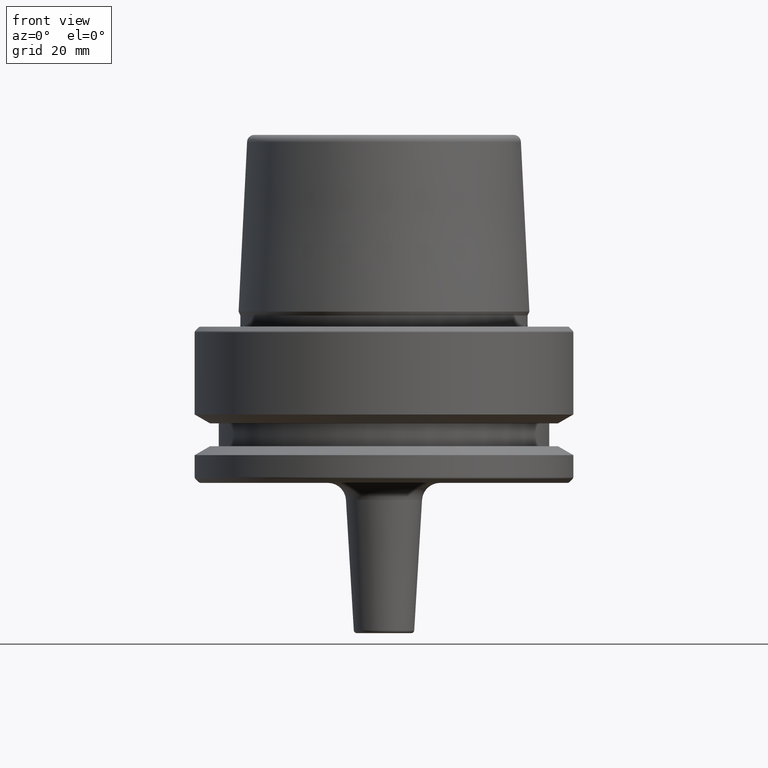
[diagram: clean part render]
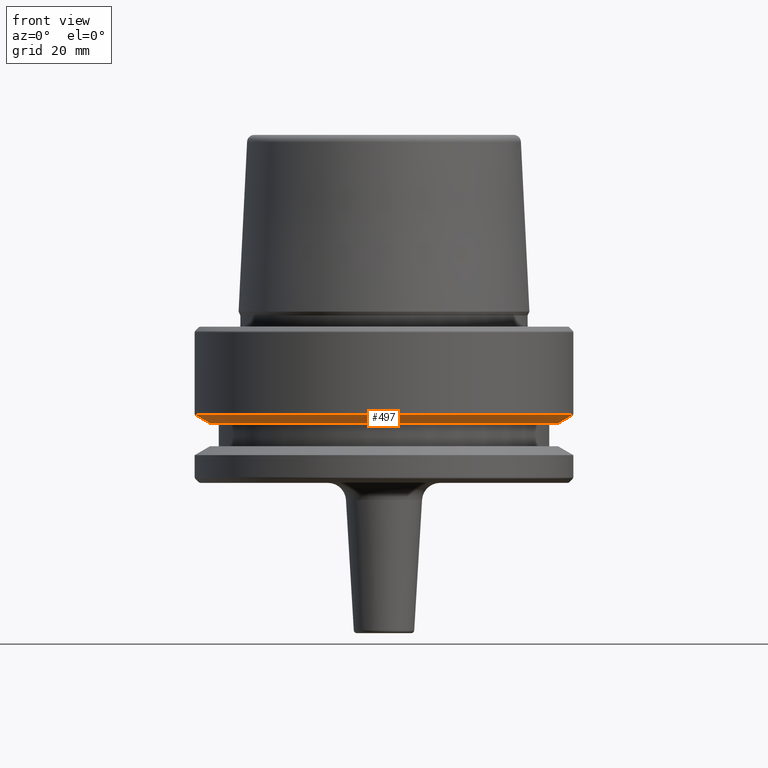
[diagram: same view with one face highlighted and labeled with its STEP entity id]
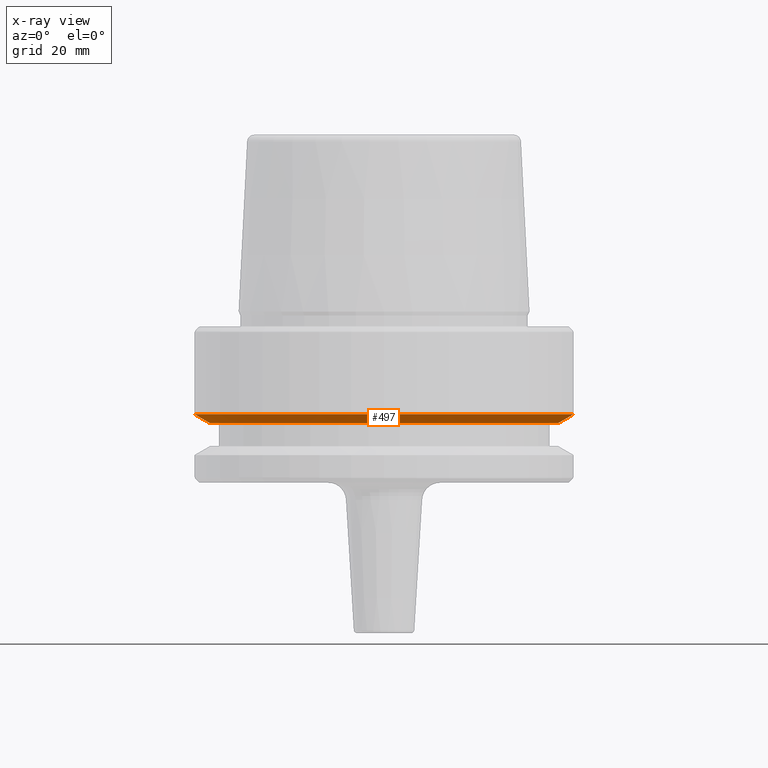
[diagram: x-ray of the same camera — body ghosted, the highlighted face saturated]
A machine part, front view. The second image highlights one B-rep face of the part: STEP entity #497.
The next image is the same camera in x-ray: the body ghosted, the highlighted face saturated — about 0% of this face is hidden behind the body in this view.
In plain terms, the highlighted conical surface has half-angle 60 deg.
Its self-contained STEP definition (entity closure, byte-faithful):
#32 = CARTESIAN_POINT ( 'NONE',  ( 0.0000000000000000000, 0.0000000000000000000, -16.10000000000001600 ) ) ;
#75 = LINE ( 'NONE', #247, #1051 ) ;
#144 = VERTEX_POINT ( 'NONE', #812 ) ;
#196 = DIRECTION ( 'NONE',  ( 1.000000000000000000, 0.0000000000000000000, 0.0000000000000000000 ) ) ;
#247 = CARTESIAN_POINT ( 'NONE',  ( -28.94089653438085100, 3.544237630528423800E-015, -16.10000000000001600 ) ) ;
#323 = EDGE_CURVE ( 'NONE', #144, #427, #636, .T. ) ;
#405 = CONICAL_SURFACE ( 'NONE', #1135, 28.94089653438085100, 1.047197551196598300 ) ;
#421 = CARTESIAN_POINT ( 'NONE',  ( 0.0000000000000000000, 0.0000000000000000000, -14.62250092524070100 ) ) ;
#427 = VERTEX_POINT ( 'NONE', #1240 ) ;
#462 = DIRECTION ( 'NONE',  ( 1.000000000000000000, 0.0000000000000000000, 0.0000000000000000000 ) ) ;
#467 = CARTESIAN_POINT ( 'NONE',  ( 28.94089653438085100, 0.0000000000000000000, -16.10000000000001600 ) ) ;
#497 = ADVANCED_FACE ( 'NONE', ( #773 ), #405, .T. ) ;
#526 = DIRECTION ( 'NONE',  ( 1.000000000000000000, 0.0000000000000000000, 0.0000000000000000000 ) ) ;
#530 = AXIS2_PLACEMENT_3D ( 'NONE', #421, #804, #196 ) ;
#614 = ORIENTED_EDGE ( 'NONE', *, *, #323, .F. ) ;
#636 = CIRCLE ( 'NONE', #530, 31.50000000000000000 ) ;
#646 = EDGE_LOOP ( 'NONE', ( #1149, #1231, #723, #614 ) ) ;
#663 = DIRECTION ( 'NONE',  ( 0.8660254037844389300, 0.0000000000000000000, 0.4999999999999995000 ) ) ;
#670 = VERTEX_POINT ( 'NONE', #989 ) ;
#686 = VECTOR ( 'NONE', #663, 1000.000000000000000 ) ;
#723 = ORIENTED_EDGE ( 'NONE', *, *, #1243, .T. ) ;
#773 = FACE_OUTER_BOUND ( 'NONE', #646, .T. ) ;
#796 = EDGE_CURVE ( 'NONE', #935, #670, #968, .T. ) ;
#804 = DIRECTION ( 'NONE',  ( -0.0000000000000000000, -0.0000000000000000000, 1.000000000000000000 ) ) ;
#812 = CARTESIAN_POINT ( 'NONE',  ( -31.50000000000000000, 3.857637417314162700E-015, -14.62250092524070100 ) ) ;
#899 = DIRECTION ( 'NONE',  ( -0.0000000000000000000, -0.0000000000000000000, 1.000000000000000000 ) ) ;
#930 = CARTESIAN_POINT ( 'NONE',  ( -28.94089653438085100, 3.700937523921292900E-015, -16.10000000000001600 ) ) ;
#934 = DIRECTION ( 'NONE',  ( -0.8660254037844389300, 1.060575238724907300E-016, 0.4999999999999995000 ) ) ;
#935 = VERTEX_POINT ( 'NONE', #930 ) ;
#955 = EDGE_CURVE ( 'NONE', #935, #144, #75, .T. ) ;
#965 = CARTESIAN_POINT ( 'NONE',  ( 0.0000000000000000000, 0.0000000000000000000, -16.10000000000001600 ) ) ;
#968 = CIRCLE ( 'NONE', #1181, 28.94089653438085100 ) ;
#989 = CARTESIAN_POINT ( 'NONE',  ( 28.94089653438085100, 0.0000000000000000000, -16.10000000000001600 ) ) ;
#1051 = VECTOR ( 'NONE', #934, 1000.000000000000000 ) ;
#1135 = AXIS2_PLACEMENT_3D ( 'NONE', #32, #899, #526 ) ;
#1137 = DIRECTION ( 'NONE',  ( -0.0000000000000000000, -0.0000000000000000000, 1.000000000000000000 ) ) ;
#1149 = ORIENTED_EDGE ( 'NONE', *, *, #955, .F. ) ;
#1181 = AXIS2_PLACEMENT_3D ( 'NONE', #965, #1137, #462 ) ;
#1231 = ORIENTED_EDGE ( 'NONE', *, *, #796, .T. ) ;
#1234 = LINE ( 'NONE', #467, #686 ) ;
#1240 = CARTESIAN_POINT ( 'NONE',  ( 31.50000000000000000, 0.0000000000000000000, -14.62250092524070100 ) ) ;
#1243 = EDGE_CURVE ( 'NONE', #670, #427, #1234, .T. ) ;